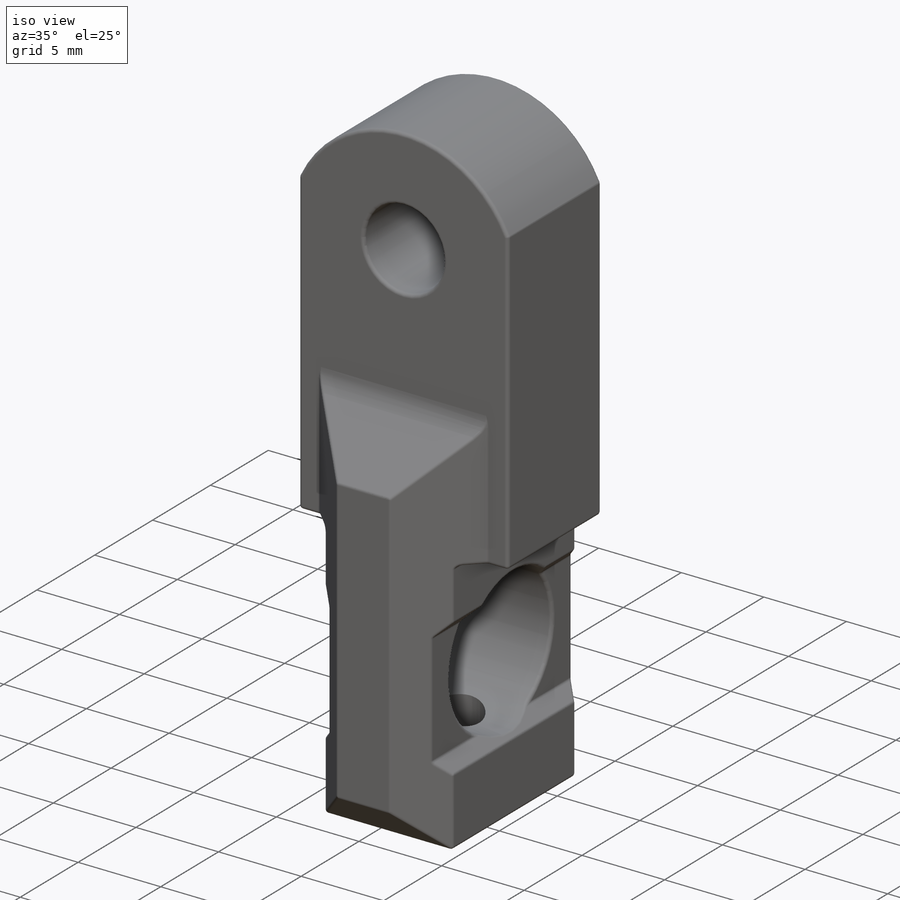
[diagram: iso view]
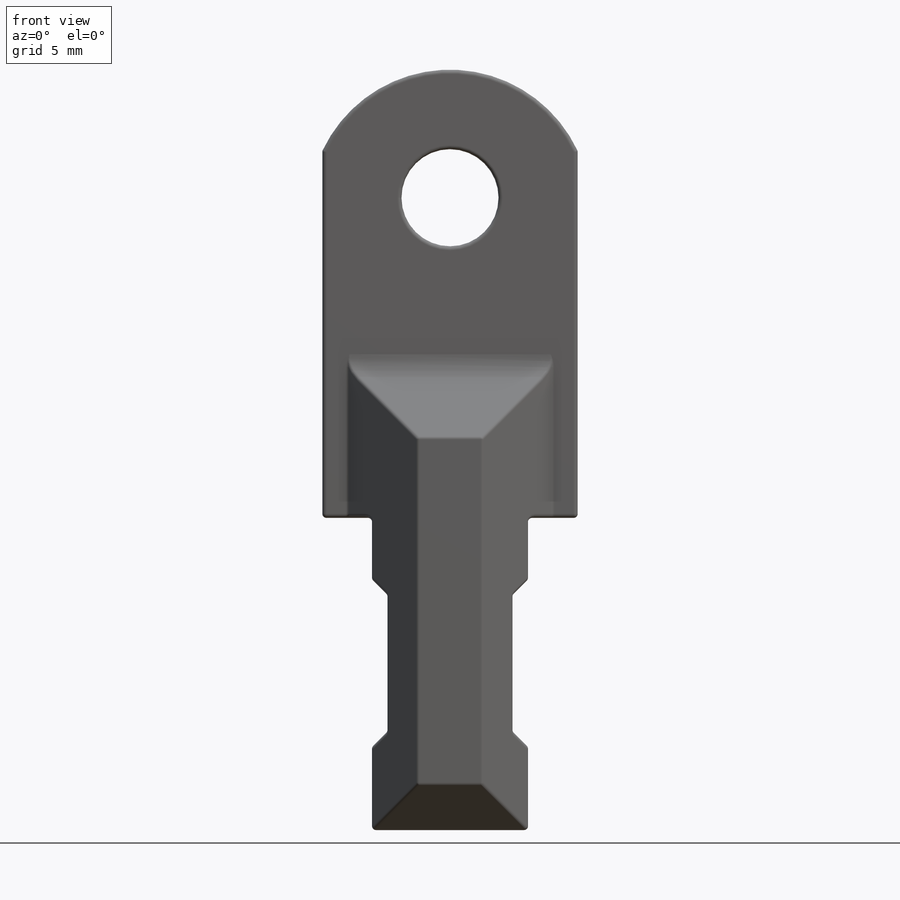
[diagram: front view]
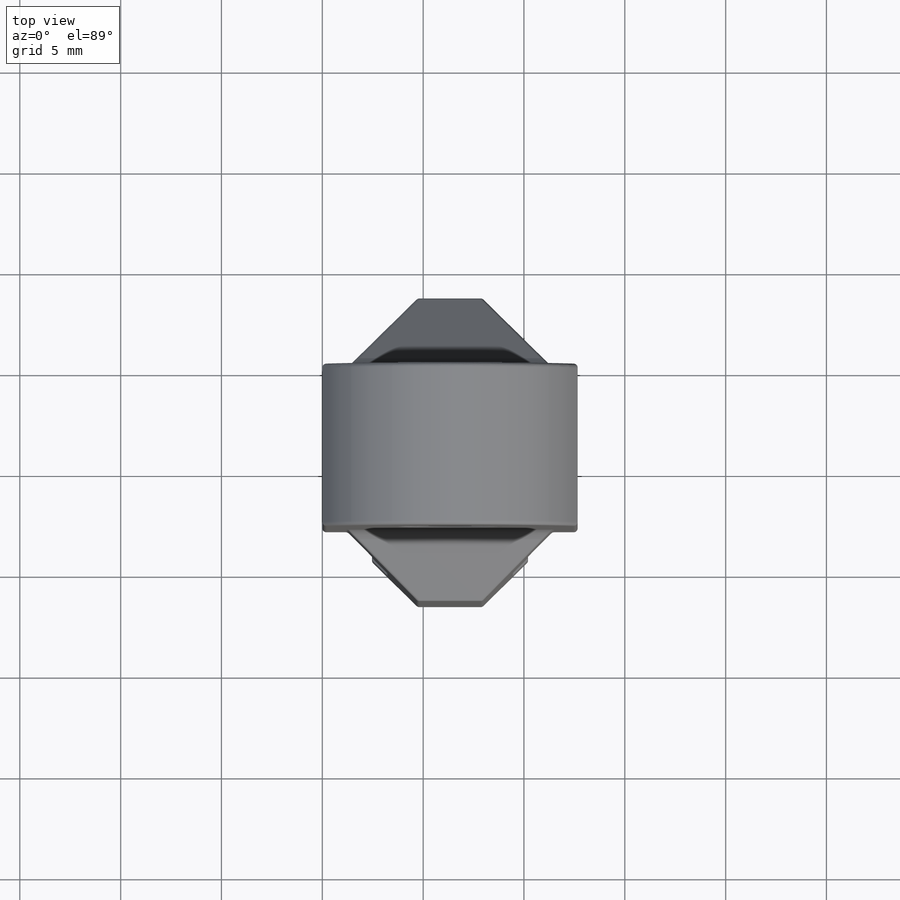
[diagram: top view]
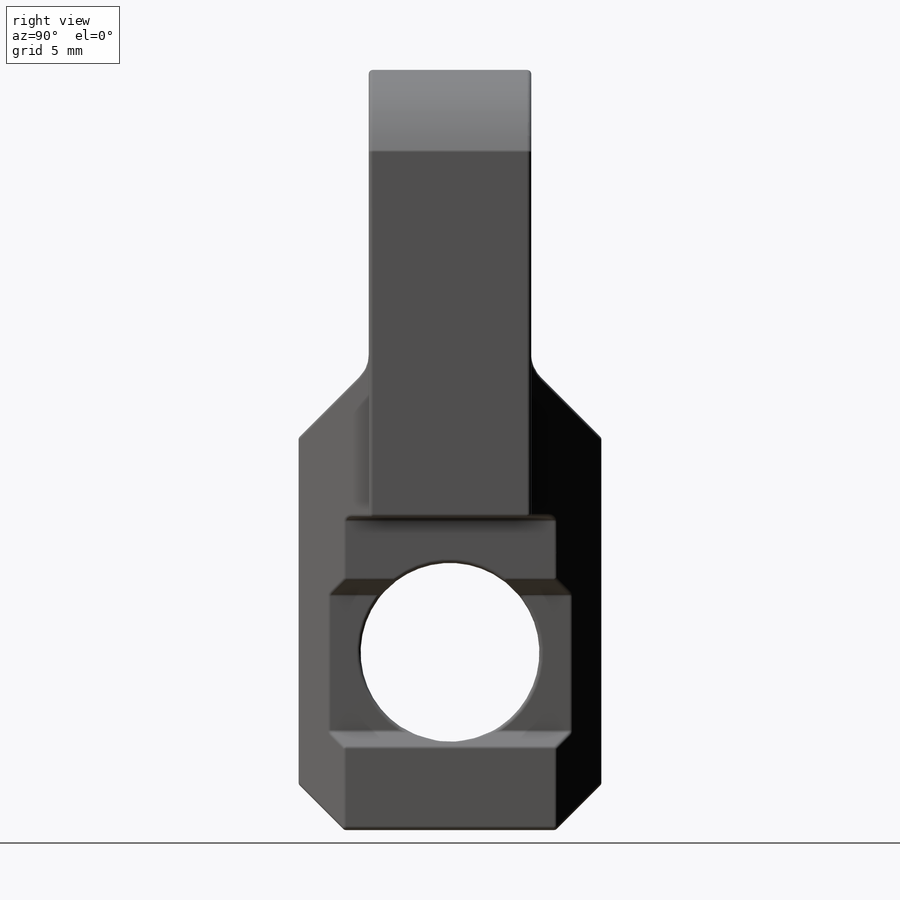
[diagram: right view]
SOLIDWORKS PART (.sldprt)
format: sldprt  version: not decoded by parser v0  size: 691,712 bytes
history: native  units: mm
features: sketch x9, cut_extrude x7, chamfer x3, extrude x2, fillet x2, material x1, plane x1 (+16 scaffold rows collapsed)
feature tree (41):
  scaffold x16  (default folders/planes/origin — collapsed)
  material  "Material <not specified>"
  sketch  "Sketch1"  dims[D1=12.6619mm D2=22.225mm]
  extrude  "Extrude1"  Depth=8.0518mm
  sketch  "Sketch2"  dims[D2=4.8133mm D1=6.35mm]
  cut_extrude  "Extrude2"  [1 undecoded]
  sketch  "Sketch3"  dims[D1=6.985mm]
  cut_extrude  "Extrude5"  Depth=8.0518mm
  plane  "Plane1"
  sketch  "Sketch6"  dims[c1.D1=8.0518mm c1.D2=15.0114mm c1.D3=8.0518mm c2.D1=7.4549mm c2.D3=15.0114mm c3.D1=7.4549mm c3.D3=22.9362mm]
  extrude  "Extrude6"  Depth=5.08mm
  chamfer  "Chamfer1"  Distance=3.4798mm Angle=45deg
  sketch  "Sketch7"  dims[D1=~3.86715mm D2=~3.86715mm]
  cut_extrude  "Extrude7"  [1 undecoded]
  chamfer  "Chamfer2"  Distance=2.26822mm Angle=45deg
  sketch  "Sketch8"  dims[D1=4.1148mm D2=12.4333mm]
  cut_extrude  "Extrude8"  Depth=0.76835mm
  sketch  "Sketch9"
  cut_extrude  "Extrude9"  Depth=0.76835mm
  chamfer  "Chamfer3"  Distance=0.76962mm Angle=45deg
  sketch  "Sketch11"  dims[D2=8.8646mm D1=8.8138mm]
  cut_extrude  "Extrude10"  [1 undecoded]
  sketch  "Sketch12"  dims[D1=3.5179mm]
  cut_extrude  "Extrude11"  [1 undecoded]
  fillet  "Fillet2"  Radius=1.5875mm
  fillet  "Fillet3"  Radius=0.198437mm
decode coverage: 18 of 23 modeling features carry decoded parameters
note: ~ marks probable driven/reference dimensions
note: 4 parameter values undecoded
summary: no parameter record found for 4 features
note: suppression state not decoded; provenance and decode notes live in map.json
